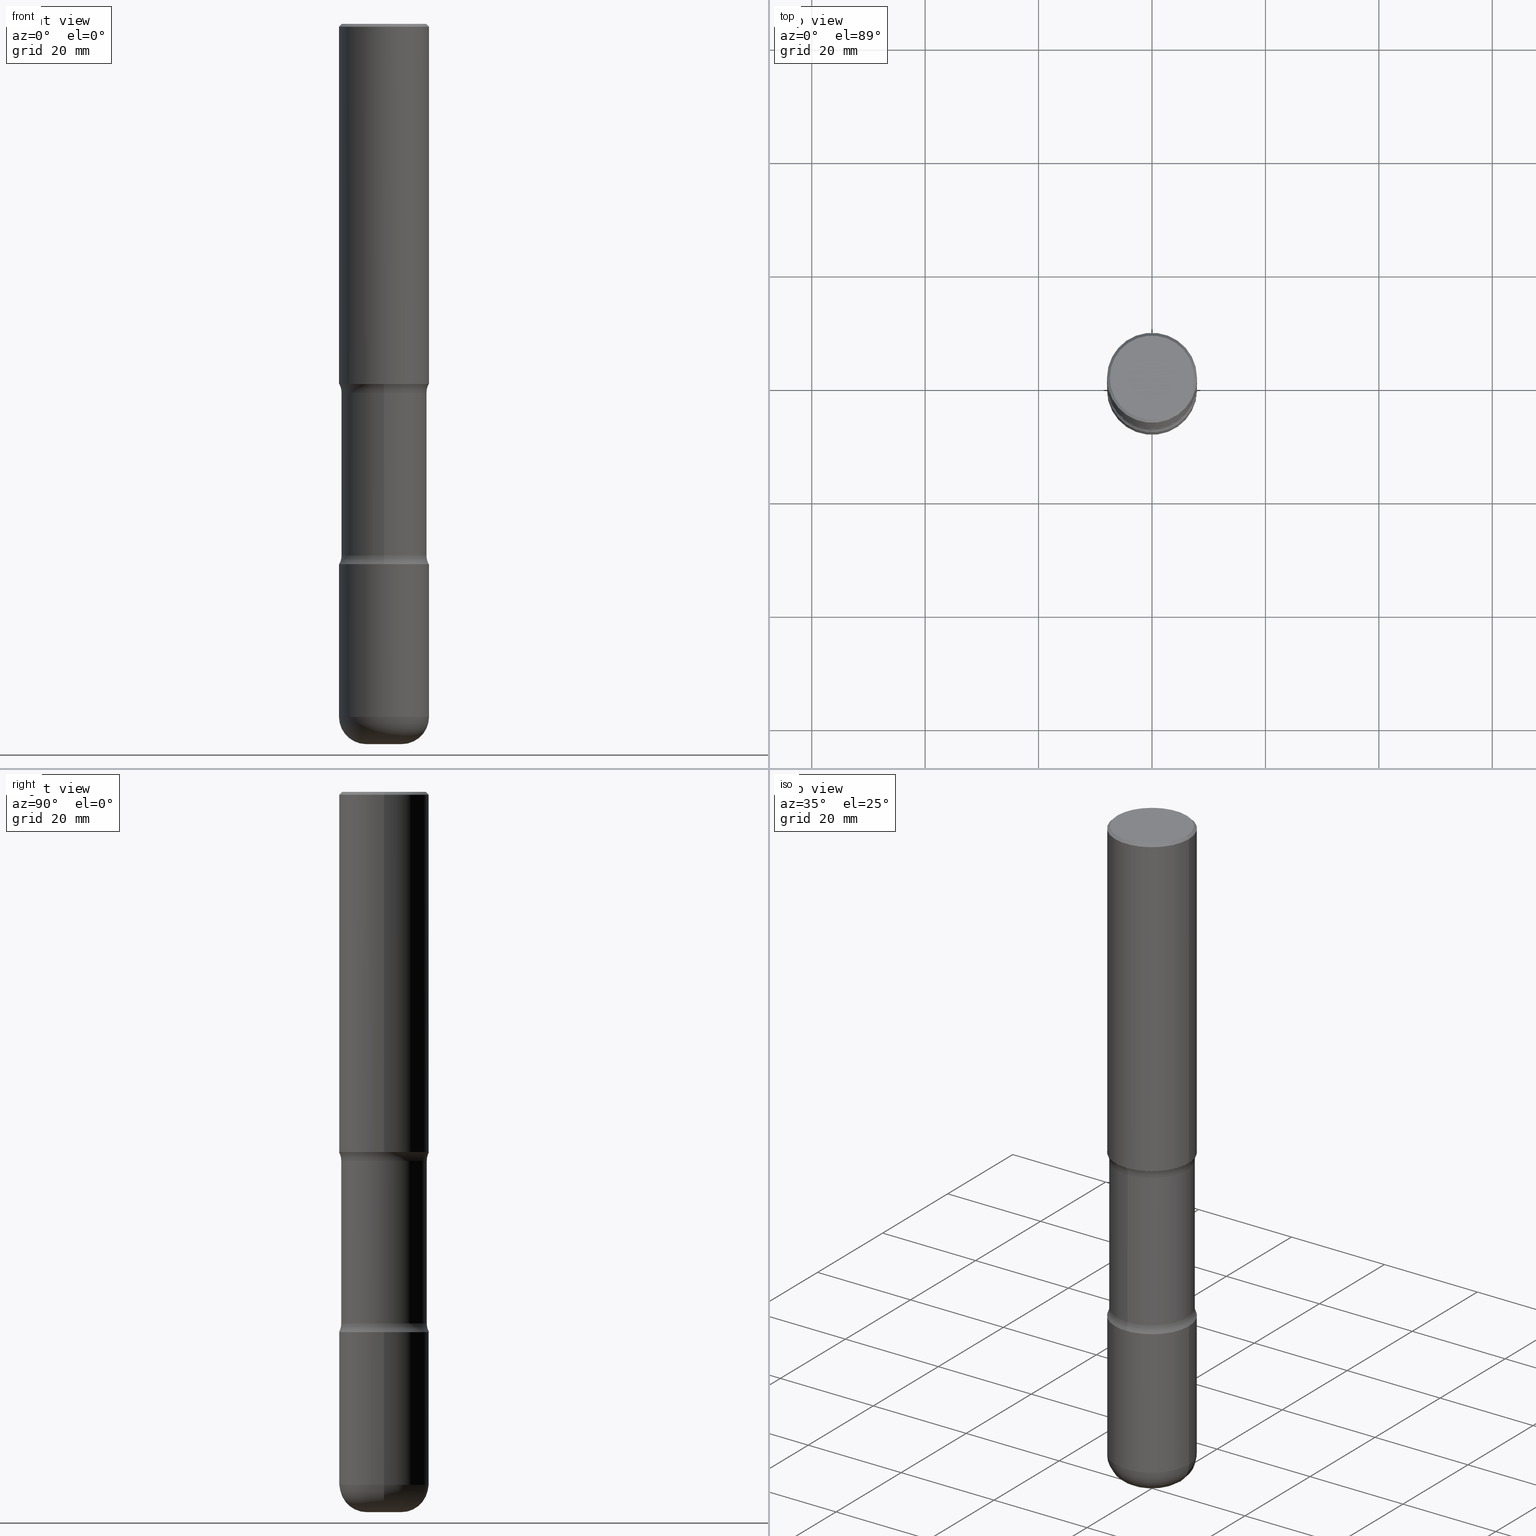
[diagram: canonical four-view strip — front | top / right | iso, engineering-drawing reading convention]
A machine part, canonical four-view strip (front | top / right | iso — engineering-drawing reading convention). The complete STEP part file that produces these views, byte-faithful:
ISO-10303-21;
HEADER;
FILE_DESCRIPTION (( 'STEP AP203' ),
    '1' );
FILE_NAME ('37918.STEP',
    '2024-03-02T01:24:31',
    ( '' ),
    ( '' ),
    'SwSTEP 2.0',
    'SolidWorks 2023',
    '' );
FILE_SCHEMA (( 'CONFIG_CONTROL_DESIGN' ));
ENDSEC;

DATA;
#1 = CLOSED_SHELL ( 'NONE', ( #56, #107, #480, #390, #368, #165, #510, #250 ) ) ;
#2 = APPROVAL_PERSON_ORGANIZATION ( #365, #194, #538 ) ;
#3 = EDGE_CURVE ( 'NONE', #168, #121, #138, .T. ) ;
#4 = ORIENTED_EDGE ( 'NONE', *, *, #113, .T. ) ;
#5 = FACE_OUTER_BOUND ( 'NONE', #467, .T. ) ;
#6 = CARTESIAN_POINT ( 'NONE',  ( 1.232232987248685960E-28, -1.732138156284176685E-14, -5.000000000000000000 ) ) ;
#7 = VERTEX_POINT ( 'NONE', #273 ) ;
#8 = DIRECTION ( 'NONE',  ( 6.982962677686265922E-15, 1.000000000000000000, -3.496765431890253764E-15 ) ) ;
#9 = DIRECTION ( 'NONE',  ( 2.521457479434076939E-29, -3.382661233743975076E-15, -1.000000000000000000 ) ) ;
#10 = DIRECTION ( 'NONE',  ( 6.982962677686266711E-15, 1.000000000000000000, -3.680805717779217644E-15 ) ) ;
#11 = EDGE_CURVE ( 'NONE', #264, #134, #153, .T. ) ;
#12 = CARTESIAN_POINT ( 'NONE',  ( 0.000000000000000000, 0.000000000000000000, 0.000000000000000000 ) ) ;
#13 = DIRECTION ( 'NONE',  ( -2.445468806185136597E-29, 3.491481338843145583E-15, 1.000000000000000000 ) ) ;
#14 = PERSON_AND_ORGANIZATION ( #469, #465 ) ;
#15 = CARTESIAN_POINT ( 'NONE',  ( 1.176270495775050811E-28, -1.679402523983553013E-14, -4.810000000000000497 ) ) ;
#16 = DIRECTION ( 'NONE',  ( -6.982962677686266711E-15, -1.000000000000000000, 0.000000000000000000 ) ) ;
#17 = CARTESIAN_POINT ( 'NONE',  ( -2.894272592809803347E-15, -0.4218750000000091593, -2.560515364784489378 ) ) ;
#18 = PERSON_AND_ORGANIZATION_ROLE ( 'design_owner' ) ;
#19 = UNCERTAINTY_MEASURE_WITH_UNIT (LENGTH_MEASURE( 1.000000000000000082E-05 ), #22, 'distance_accuracy_value', 'NONE');
#20 = DIRECTION ( 'NONE',  ( 1.000000000000000000, -6.982962677686265922E-15, 4.876176775795935793E-29 ) ) ;
#21 = CARTESIAN_POINT ( 'NONE',  ( 9.170508023194261117E-29, -1.309305502066179584E-14, -3.749999999999999556 ) ) ;
#22 =( CONVERSION_BASED_UNIT ( 'INCH', #284 ) LENGTH_UNIT ( ) NAMED_UNIT ( #342 ) );
#23 = DIRECTION ( 'NONE',  ( 2.438088387897960049E-29, -3.491481338843145188E-15, -1.000000000000000000 ) ) ;
#24 = AXIS2_PLACEMENT_3D ( 'NONE', #17, #322, #530 ) ;
#25 = ADVANCED_FACE ( 'NONE', ( #50 ), #442, .T. ) ;
#26 = AXIS2_PLACEMENT_3D ( 'NONE', #432, #180, #485 ) ;
#27 = DIRECTION ( 'NONE',  ( 0.000000000000000000, 0.000000000000000000, 1.000000000000000000 ) ) ;
#28 = CARTESIAN_POINT ( 'NONE',  ( -0.3124999999999998890, 2.112346210000094260E-15, -0.02000000000000006981 ) ) ;
#29 = CARTESIAN_POINT ( 'NONE',  ( -0.3125000000000002220, -2.178820437692046306E-15, -2.499999999999999556 ) ) ;
#30 = CARTESIAN_POINT ( 'NONE',  ( 2.073067044938200360E-15, 0.2968749999999871214, -3.689484635215509289 ) ) ;
#31 = AXIS2_PLACEMENT_3D ( 'NONE', #285, #317, #357 ) ;
#32 = ORIENTED_EDGE ( 'NONE', *, *, #295, .T. ) ;
#33 = LOCAL_TIME ( 20, 24, 31.00000000000000000, #151 ) ;
#34 = APPROVAL_DATE_TIME ( #36, #503 ) ;
#35 = DIRECTION ( 'NONE',  ( 6.982962677686265922E-15, 1.000000000000000000, -3.496765431890253764E-15 ) ) ;
#36 = DATE_AND_TIME ( #419, #394 ) ;
#37 = EDGE_CURVE ( 'NONE', #314, #209, #161, .T. ) ;
#38 = EDGE_LOOP ( 'NONE', ( #32, #350, #164, #289 ) ) ;
#39 = CIRCLE ( 'NONE', #103, 0.2924999999999998157 ) ;
#40 = LOCAL_TIME ( 20, 24, 31.00000000000000000, #451 ) ;
#41 = ORIENTED_EDGE ( 'NONE', *, *, #37, .T. ) ;
#42 = VERTEX_POINT ( 'NONE', #484 ) ;
#43 = ORIENTED_EDGE ( 'NONE', *, *, #427, .T. ) ;
#44 = AXIS2_PLACEMENT_3D ( 'NONE', #69, #288, #248 ) ;
#45 = CARTESIAN_POINT ( 'NONE',  ( 2.042516583223231356E-15, 0.2924999999999998157, -1.019124035366569212E-15 ) ) ;
#46 = CIRCLE ( 'NONE', #216, 0.3125000000000002776 ) ;
#47 = DIRECTION ( 'NONE',  ( 6.982962677686266711E-15, 1.000000000000000000, -3.680805717779217644E-15 ) ) ;
#48 = ORIENTED_EDGE ( 'NONE', *, *, #531, .T. ) ;
#49 = FACE_OUTER_BOUND ( 'NONE', #392, .T. ) ;
#50 = FACE_OUTER_BOUND ( 'NONE', #511, .T. ) ;
#51 = DATE_TIME_ROLE ( 'creation_date' ) ;
#52 = CARTESIAN_POINT ( 'NONE',  ( 1.222734403092568523E-28, -1.745740669421572989E-14, -5.000000000000000000 ) ) ;
#53 = APPLICATION_CONTEXT ( 'configuration controlled 3d designs of mechanical parts and assemblies' ) ;
#54 = DIRECTION ( 'NONE',  ( 1.000000000000000000, -6.982962677686265133E-15, 0.000000000000000000 ) ) ;
#55 = CARTESIAN_POINT ( 'NONE',  ( 0.000000000000000000, 0.000000000000000000, 0.000000000000000000 ) ) ;
#56 = ADVANCED_FACE ( 'NONE', ( #450 ), #283, .T. ) ;
#57 = FACE_OUTER_BOUND ( 'NONE', #302, .T. ) ;
#58 = AXIS2_PLACEMENT_3D ( 'NONE', #160, #336, #117 ) ;
#59 = CARTESIAN_POINT ( 'NONE',  ( -2.090307983695953569E-15, -0.2968750000000091038, -2.560515364784489822 ) ) ;
#60 = DIRECTION ( 'NONE',  ( 1.000000000000000000, -6.982962677686266711E-15, 4.876067333457692840E-29 ) ) ;
#61 = DIRECTION ( 'NONE',  ( -1.000000000000000000, 6.982962677686265922E-15, -4.876176775795935793E-29 ) ) ;
#62 = EDGE_CURVE ( 'NONE', #42, #259, #404, .T. ) ;
#63 = EDGE_CURVE ( 'NONE', #168, #520, #512, .T. ) ;
#64 = APPLICATION_PROTOCOL_DEFINITION ( 'international standard', 'config_control_design', 1994, #53 ) ;
#65 = CARTESIAN_POINT ( 'NONE',  ( 9.017921104037724021E-29, -1.288835204215942242E-14, -3.689484635215508401 ) ) ;
#66 = AXIS2_PLACEMENT_3D ( 'NONE', #55, #452, #242 ) ;
#67 = CIRCLE ( 'NONE', #513, 0.3125000000000002220 ) ;
#68 = VERTEX_POINT ( 'NONE', #400 ) ;
#69 = CARTESIAN_POINT ( 'NONE',  ( 0.000000000000000000, 0.000000000000000000, 0.000000000000000000 ) ) ;
#70 = EDGE_CURVE ( 'NONE', #7, #344, #39, .T. ) ;
#71 = DIRECTION ( 'NONE',  ( 1.000000000000000000, 0.000000000000000000, 0.000000000000000000 ) ) ;
#72 = DIRECTION ( 'NONE',  ( 1.000000000000000000, -6.982962677686266711E-15, 0.000000000000000000 ) ) ;
#73 = CARTESIAN_POINT ( 'NONE',  ( 1.222734403092568523E-28, -1.745740669421572989E-14, -5.000000000000000000 ) ) ;
#74 = EDGE_CURVE ( 'NONE', #134, #264, #553, .T. ) ;
#75 =( NAMED_UNIT ( * ) SI_UNIT ( $, .STERADIAN. ) SOLID_ANGLE_UNIT ( ) );
#76 = AXIS2_PLACEMENT_3D ( 'NONE', #434, #9, #47 ) ;
#77 = APPROVAL_PERSON_ORGANIZATION ( #101, #503, #446 ) ;
#78 = ORIENTED_EDGE ( 'NONE', *, *, #330, .T. ) ;
#79 = DESIGN_CONTEXT ( 'detailed design', #144, 'design' ) ;
#80 = EDGE_CURVE ( 'NONE', #344, #7, #324, .T. ) ;
#81 = CARTESIAN_POINT ( 'NONE',  ( 0.3125000000000001665, -2.182175836776959530E-15, 1.523805242436230636E-29 ) ) ;
#82 = EDGE_CURVE ( 'NONE', #367, #525, #527, .T. ) ;
#83 = ORIENTED_EDGE ( 'NONE', *, *, #166, .T. ) ;
#84 = VERTEX_POINT ( 'NONE', #537 ) ;
#85 = AXIS2_PLACEMENT_3D ( 'NONE', #170, #343, #16 ) ;
#86 = AXIS2_PLACEMENT_3D ( 'NONE', #337, #298, #123 ) ;
#87 = AXIS2_PLACEMENT_3D ( 'NONE', #183, #355, #526 ) ;
#88 = ORIENTED_EDGE ( 'NONE', *, *, #62, .F. ) ;
#89 = CC_DESIGN_DATE_AND_TIME_ASSIGNMENT ( #192, #318, ( #426 ) ) ;
#90 = EDGE_LOOP ( 'NONE', ( #476, #83, #381, #478 ) ) ;
#91 = DIRECTION ( 'NONE',  ( 2.438088387897960049E-29, -3.491481338843145188E-15, -1.000000000000000000 ) ) ;
#92 = ORIENTED_EDGE ( 'NONE', *, *, #260, .F. ) ;
#93 = VECTOR ( 'NONE', #489, 39.37007874015748143 ) ;
#94 = CARTESIAN_POINT ( 'NONE',  ( -2.090307983695922804E-15, -0.2968750000000128786, -3.689484635215507069 ) ) ;
#95 = AXIS2_PLACEMENT_3D ( 'NONE', #12, #488, #351 ) ;
#96 = DIRECTION ( 'NONE',  ( -2.445468806185136597E-29, 3.491481338843145583E-15, 1.000000000000000000 ) ) ;
#97 = CARTESIAN_POINT ( 'NONE',  ( 0.1225000000000003031, -1.764943816785210001E-14, -4.810000000000000497 ) ) ;
#98 = ORIENTED_EDGE ( 'NONE', *, *, #82, .T. ) ;
#99 = CARTESIAN_POINT ( 'NONE',  ( 4.890937612370289799E-31, -6.982962677686315028E-17, -0.02000000000000006981 ) ) ;
#100 = CARTESIAN_POINT ( 'NONE',  ( -1.043851414335219820E-46, 1.490343170380447200E-32, 4.268512490100411279E-18 ) ) ;
#101 = PERSON_AND_ORGANIZATION ( #469, #465 ) ;
#102 = DIRECTION ( 'NONE',  ( 1.000000000000000000, -6.982962677686264344E-15, 0.000000000000000000 ) ) ;
#103 = AXIS2_PLACEMENT_3D ( 'NONE', #142, #405, #191 ) ;
#104 = VECTOR ( 'NONE', #262, 39.37007874015748143 ) ;
#105 = DIRECTION ( 'NONE',  ( -1.000000000000000000, 6.982962677686265922E-15, -4.876176775795935793E-29 ) ) ;
#106 = ORIENTED_EDGE ( 'NONE', *, *, #421, .T. ) ;
#107 = ADVANCED_FACE ( 'NONE', ( #374 ), #471, .F. ) ;
#108 = FACE_OUTER_BOUND ( 'NONE', #470, .T. ) ;
#109 = DIRECTION ( 'NONE',  ( 1.000000000000000000, -6.982962677686266711E-15, 0.000000000000000000 ) ) ;
#110 = APPROVAL_ROLE ( '' ) ;
#111 = PERSON_AND_ORGANIZATION ( #469, #465 ) ;
#112 = ORIENTED_EDGE ( 'NONE', *, *, #531, .F. ) ;
#113 = EDGE_CURVE ( 'NONE', #121, #502, #455, .T. ) ;
#114 = DIRECTION ( 'NONE',  ( 2.521457479434076939E-29, -3.382661233743975076E-15, -1.000000000000000000 ) ) ;
#115 = CIRCLE ( 'NONE', #85, 0.1250000000000001388 ) ;
#116 = CC_DESIGN_APPROVAL ( #194, ( #377 ) ) ;
#117 = DIRECTION ( 'NONE',  ( 6.982962677686265922E-15, 1.000000000000000000, -3.382661233743974681E-15 ) ) ;
#118 = CARTESIAN_POINT ( 'NONE',  ( 2.945937379648955300E-15, 0.4218749999999909517, -2.560515364784492487 ) ) ;
#119 = EDGE_LOOP ( 'NONE', ( #137, #249 ) ) ;
#120 = FACE_OUTER_BOUND ( 'NONE', #38, .T. ) ;
#121 = VERTEX_POINT ( 'NONE', #206 ) ;
#122 = DIRECTION ( 'NONE',  ( 2.521457479434076939E-29, -3.382661233743975076E-15, -1.000000000000000000 ) ) ;
#123 = DIRECTION ( 'NONE',  ( 6.982962677686265922E-15, 1.000000000000000000, -3.382661233743975076E-15 ) ) ;
#124 = AXIS2_PLACEMENT_3D ( 'NONE', #453, #461, #251 ) ;
#125 = EDGE_CURVE ( 'NONE', #132, #314, #444, .T. ) ;
#126 = EDGE_CURVE ( 'NONE', #264, #277, #115, .T. ) ;
#127 = ORIENTED_EDGE ( 'NONE', *, *, #63, .F. ) ;
#128 = ORIENTED_EDGE ( 'NONE', *, *, #557, .T. ) ;
#129 = ORIENTED_EDGE ( 'NONE', *, *, #384, .F. ) ;
#130 = AXIS2_PLACEMENT_3D ( 'NONE', #97, #412, #109 ) ;
#131 = VECTOR ( 'NONE', #558, 39.37007874015748143 ) ;
#132 = VERTEX_POINT ( 'NONE', #524 ) ;
#133 = CARTESIAN_POINT ( 'NONE',  ( 9.022519586318873617E-29, -1.288176675380345821E-14, -3.689484635215508401 ) ) ;
#134 = VERTEX_POINT ( 'NONE', #483 ) ;
#135 = DIRECTION ( 'NONE',  ( 6.982962677686265922E-15, 1.000000000000000000, -3.382661233743975076E-15 ) ) ;
#136 = CARTESIAN_POINT ( 'NONE',  ( 4.890937612370289799E-31, -6.982962677686315028E-17, -0.02000000000000006981 ) ) ;
#137 = ORIENTED_EDGE ( 'NONE', *, *, #544, .F. ) ;
#138 = CIRCLE ( 'NONE', #386, 0.2968750000000000000 ) ;
#139 = DIRECTION ( 'NONE',  ( -1.000000000000000000, 6.982962677686266711E-15, 0.000000000000000000 ) ) ;
#140 = AXIS2_PLACEMENT_3D ( 'NONE', #320, #359, #267 ) ;
#141 = FACE_OUTER_BOUND ( 'NONE', #551, .T. ) ;
#142 = CARTESIAN_POINT ( 'NONE',  ( -1.043851414335219820E-46, 1.490343170380447200E-32, 4.268512490100411279E-18 ) ) ;
#143 = PERSON_AND_ORGANIZATION_ROLE ( 'classification_officer' ) ;
#144 = APPLICATION_CONTEXT ( 'configuration controlled 3d designs of mechanical parts and assemblies' ) ;
#145 = CARTESIAN_POINT ( 'NONE',  ( 2.182175836777019878E-15, 0.3124999999999913958, -2.500000000000000444 ) ) ;
#146 = DIRECTION ( 'NONE',  ( 2.521457479434076939E-29, -3.382661233743975076E-15, -1.000000000000000000 ) ) ;
#147 = CARTESIAN_POINT ( 'NONE',  ( -0.3124999999999998890, 2.112346210000094260E-15, -0.02000000000000006981 ) ) ;
#148 = EDGE_CURVE ( 'NONE', #7, #68, #356, .T. ) ;
#149 = DIRECTION ( 'NONE',  ( -6.982962677686265922E-15, -1.000000000000000000, 3.382661233743974681E-15 ) ) ;
#150 = EDGE_LOOP ( 'NONE', ( #254, #182 ) ) ;
#151 = COORDINATED_UNIVERSAL_TIME_OFFSET ( 5, 0, .BEHIND. ) ;
#152 = ADVANCED_FACE ( 'NONE', ( #190 ), #360, .F. ) ;
#153 = CIRCLE ( 'NONE', #200, 0.3125000000000001665 ) ;
#154 = VECTOR ( 'NONE', #270, 39.37007874015748143 ) ;
#155 = DIRECTION ( 'NONE',  ( -2.521457479434076939E-29, 3.382661233743974681E-15, 1.000000000000000000 ) ) ;
#156 = ORIENTED_EDGE ( 'NONE', *, *, #271, .T. ) ;
#157 = DIRECTION ( 'NONE',  ( -2.445468806185136597E-29, 3.491481338843145583E-15, 1.000000000000000000 ) ) ;
#158 = DIRECTION ( 'NONE',  ( 1.000000000000000000, -6.982962677686265922E-15, 4.883557194083112340E-29 ) ) ;
#159 = DIRECTION ( 'NONE',  ( -2.445468806185136597E-29, 3.491481338843145583E-15, 1.000000000000000000 ) ) ;
#160 = CARTESIAN_POINT ( 'NONE',  ( 6.113672015462840371E-29, -8.728703347107863365E-15, -2.499999999999999556 ) ) ;
#161 = CIRCLE ( 'NONE', #130, 0.1899999999999998634 ) ;
#162 = CIRCLE ( 'NONE', #414, 0.3125000000000002776 ) ;
#163 = AXIS2_PLACEMENT_3D ( 'NONE', #45, #91, #61 ) ;
#164 = ORIENTED_EDGE ( 'NONE', *, *, #557, .F. ) ;
#165 = ADVANCED_FACE ( 'NONE', ( #282 ), #366, .F. ) ;
#166 = EDGE_CURVE ( 'NONE', #168, #435, #184, .T. ) ;
#167 = VECTOR ( 'NONE', #507, 39.37007874015748143 ) ;
#168 = VERTEX_POINT ( 'NONE', #59 ) ;
#169 = AXIS2_PLACEMENT_3D ( 'NONE', #99, #235, #139 ) ;
#170 = CARTESIAN_POINT ( 'NONE',  ( 2.945937379648984488E-15, 0.4218749999999872324, -3.689484635215510178 ) ) ;
#171 = ORIENTED_EDGE ( 'NONE', *, *, #70, .F. ) ;
#172 = ADVANCED_FACE ( 'NONE', ( #321 ), #493, .T. ) ;
#173 = FACE_OUTER_BOUND ( 'NONE', #217, .T. ) ;
#174 = ORIENTED_EDGE ( 'NONE', *, *, #536, .T. ) ;
#175 = ADVANCED_FACE ( 'NONE', ( #449 ), #334, .T. ) ;
#176 = ORIENTED_EDGE ( 'NONE', *, *, #11, .T. ) ;
#177 = CLOSED_SHELL ( 'NONE', ( #313, #175, #463, #422, #152, #438 ) ) ;
#178 =( GEOMETRIC_REPRESENTATION_CONTEXT ( 3 ) GLOBAL_UNCERTAINTY_ASSIGNED_CONTEXT ( ( #19 ) ) GLOBAL_UNIT_ASSIGNED_CONTEXT ( ( #22, #199, #75 ) ) REPRESENTATION_CONTEXT ( 'NONE', 'WORKASPACE' ) );
#179 = EDGE_LOOP ( 'NONE', ( #176, #375 ) ) ;
#180 = DIRECTION ( 'NONE',  ( 1.000000000000000000, -6.860497997771530774E-15, 4.842131541558068249E-29 ) ) ;
#181 = DIRECTION ( 'NONE',  ( 2.521457479434076939E-29, -3.382661233743975076E-15, -1.000000000000000000 ) ) ;
#182 = ORIENTED_EDGE ( 'NONE', *, *, #125, .F. ) ;
#183 = CARTESIAN_POINT ( 'NONE',  ( 4.890937612370289799E-31, -6.982962677686315028E-17, -0.02000000000000006981 ) ) ;
#184 = LINE ( 'NONE', #276, #505 ) ;
#185 = DIRECTION ( 'NONE',  ( 6.982962677686265133E-15, 1.000000000000000000, -3.496765431890254947E-15 ) ) ;
#186 = SECURITY_CLASSIFICATION_LEVEL ( 'unclassified' ) ;
#187 = AXIS2_PLACEMENT_3D ( 'NONE', #539, #155, #149 ) ;
#188 = DIRECTION ( 'NONE',  ( -2.445468806185136597E-29, 3.491481338843145583E-15, 1.000000000000000000 ) ) ;
#189 = CC_DESIGN_APPROVAL ( #341, ( #207 ) ) ;
#190 = FACE_OUTER_BOUND ( 'NONE', #431, .T. ) ;
#191 = DIRECTION ( 'NONE',  ( 1.000000000000000000, -6.982962677686266711E-15, 4.876067333457692840E-29 ) ) ;
#192 = DATE_AND_TIME ( #274, #325 ) ;
#193 = LINE ( 'NONE', #408, #529 ) ;
#194 = APPROVAL ( #491, 'UNSPECIFIED' ) ;
#195 = DIRECTION ( 'NONE',  ( -2.445468806185136597E-29, 3.491481338843145583E-15, 1.000000000000000000 ) ) ;
#196 = APPLICATION_PROTOCOL_DEFINITION ( 'international standard', 'config_control_design', 1994, #144 ) ;
#197 = ORIENTED_EDGE ( 'NONE', *, *, #80, .T. ) ;
#198 = APPROVAL_STATUS ( 'not_yet_approved' ) ;
#199 =( NAMED_UNIT ( * ) PLANE_ANGLE_UNIT ( ) SI_UNIT ( $, .RADIAN. ) );
#200 = AXIS2_PLACEMENT_3D ( 'NONE', #21, #310, #185 ) ;
#201 = LOCAL_TIME ( 20, 24, 31.00000000000000000, #362 ) ;
#202 = DIRECTION ( 'NONE',  ( 2.521457479434076939E-29, -3.382661233743975076E-15, -1.000000000000000000 ) ) ;
#203 = PERSON_AND_ORGANIZATION ( #469, #465 ) ;
#204 = MECHANICAL_CONTEXT ( 'NONE', #53, 'mechanical' ) ;
#205 = DIRECTION ( 'NONE',  ( -2.445468806185136597E-29, 3.491481338843145583E-15, 1.000000000000000000 ) ) ;
#206 = CARTESIAN_POINT ( 'NONE',  ( 2.073067044938171961E-15, 0.2968749999999909517, -2.560515364784492043 ) ) ;
#207 = PRODUCT_DEFINITION ( 'UNKNOWN', '', #377, #79 ) ;
#208 = CARTESIAN_POINT ( 'NONE',  ( 6.113672015462840371E-29, -8.728703347107863365E-15, -2.499999999999999556 ) ) ;
#209 = VERTEX_POINT ( 'NONE', #528 ) ;
#210 = AXIS2_PLACEMENT_3D ( 'NONE', #411, #535, #239 ) ;
#211 = ORIENTED_EDGE ( 'NONE', *, *, #306, .F. ) ;
#212 = PRODUCT_RELATED_PRODUCT_CATEGORY ( 'detail', '', ( #556 ) ) ;
#213 = SHAPE_DEFINITION_REPRESENTATION ( #349, #319 ) ;
#214 = CIRCLE ( 'NONE', #233, 0.3124999999999998890 ) ;
#215 = ORIENTED_EDGE ( 'NONE', *, *, #330, .F. ) ;
#216 = AXIS2_PLACEMENT_3D ( 'NONE', #523, #309, #8 ) ;
#217 = EDGE_LOOP ( 'NONE', ( #127, #517, #4, #439 ) ) ;
#218 = ORIENTED_EDGE ( 'NONE', *, *, #479, .F. ) ;
#219 = ORIENTED_EDGE ( 'NONE', *, *, #415, .T. ) ;
#220 = CIRCLE ( 'NONE', #369, 0.2968750000000000000 ) ;
#221 = CC_DESIGN_SECURITY_CLASSIFICATION ( #426, ( #377 ) ) ;
#222 = DIRECTION ( 'NONE',  ( 6.982962677686265922E-15, 1.000000000000000000, -3.382661233743975076E-15 ) ) ;
#223 = EDGE_CURVE ( 'NONE', #121, #168, #540, .T. ) ;
#224 = CYLINDRICAL_SURFACE ( 'NONE', #464, 0.2968750000000000000 ) ;
#225 = ORIENTED_EDGE ( 'NONE', *, *, #253, .T. ) ;
#226 = CARTESIAN_POINT ( 'NONE',  ( 0.3125000000000002220, -1.091087918388482329E-14, -2.499999999999999556 ) ) ;
#227 = DIRECTION ( 'NONE',  ( 1.000000000000000000, -6.982962677686264344E-15, 0.000000000000000000 ) ) ;
#228 = DIRECTION ( 'NONE',  ( 1.000000000000000000, -6.982962677686265133E-15, 0.000000000000000000 ) ) ;
#229 = CARTESIAN_POINT ( 'NONE',  ( 6.166278489433880529E-29, -9.076584013649411488E-15, -2.560515364784490711 ) ) ;
#230 = CARTESIAN_POINT ( 'NONE',  ( 1.222734403092568523E-28, -1.745740669421572989E-14, -5.000000000000000000 ) ) ;
#231 = CARTESIAN_POINT ( 'NONE',  ( 9.170508023194261117E-29, -1.309305502066179584E-14, -3.749999999999999556 ) ) ;
#232 = APPROVAL_DATE_TIME ( #286, #194 ) ;
#233 = AXIS2_PLACEMENT_3D ( 'NONE', #441, #157, #72 ) ;
#234 = TOROIDAL_SURFACE ( 'NONE', #456, 0.4218750000000001110, 0.1250000000000001388 ) ;
#235 = DIRECTION ( 'NONE',  ( 2.445468806185136597E-29, -3.491481338843145583E-15, -1.000000000000000000 ) ) ;
#236 = MANIFOLD_SOLID_BREP ( 'Body-Move/Copy2[4]', #1 ) ;
#237 = CARTESIAN_POINT ( 'NONE',  ( 6.113672015462840371E-29, -8.728703347107863365E-15, -2.499999999999999556 ) ) ;
#238 = CC_DESIGN_DATE_AND_TIME_ASSIGNMENT ( #332, #51, ( #207 ) ) ;
#239 = DIRECTION ( 'NONE',  ( 1.000000000000000000, -6.982962677686266711E-15, 4.876176775795935232E-29 ) ) ;
#240 = MANIFOLD_SOLID_BREP ( 'Body-Move/Copy2[1]', #346 ) ;
#241 = CARTESIAN_POINT ( 'NONE',  ( 0.3124999999999998890, -2.213735251080466123E-15, -0.02000000000000006981 ) ) ;
#242 = DIRECTION ( 'NONE',  ( 1.000000000000000000, -6.982962677686266711E-15, 4.876176775795935232E-29 ) ) ;
#243 = CALENDAR_DATE ( 2024, 1, 3 ) ;
#244 =( LENGTH_UNIT ( ) NAMED_UNIT ( * ) SI_UNIT ( $, .METRE. ) );
#245 = AXIS2_PLACEMENT_3D ( 'NONE', #247, #205, #158 ) ;
#246 = AXIS2_PLACEMENT_3D ( 'NONE', #293, #27, #71 ) ;
#247 = CARTESIAN_POINT ( 'NONE',  ( 1.176270495775050811E-28, -1.679402523983553013E-14, -4.810000000000000497 ) ) ;
#248 = DIRECTION ( 'NONE',  ( 1.000000000000000000, -6.982962677686266711E-15, 4.876176775795936353E-29 ) ) ;
#249 = ORIENTED_EDGE ( 'NONE', *, *, #378, .F. ) ;
#250 = ADVANCED_FACE ( 'NONE', ( #141 ), #224, .T. ) ;
#251 = DIRECTION ( 'NONE',  ( 1.000000000000000000, -6.982962677686265922E-15, 4.883557194083112340E-29 ) ) ;
#252 = AXIS2_PLACEMENT_3D ( 'NONE', #230, #409, #105 ) ;
#253 = EDGE_CURVE ( 'NONE', #259, #42, #280, .T. ) ;
#254 = ORIENTED_EDGE ( 'NONE', *, *, #421, .F. ) ;
#255 = CIRCLE ( 'NONE', #407, 0.3125000000000002220 ) ;
#256 = ORIENTED_EDGE ( 'NONE', *, *, #271, .F. ) ;
#257 = TOROIDAL_SURFACE ( 'NONE', #358, 0.4218750000000000555, 0.1250000000000000000 ) ;
#258 = ORIENTED_EDGE ( 'NONE', *, *, #295, .F. ) ;
#259 = VERTEX_POINT ( 'NONE', #268 ) ;
#260 = EDGE_CURVE ( 'NONE', #84, #209, #255, .T. ) ;
#261 = CC_DESIGN_PERSON_AND_ORGANIZATION_ASSIGNMENT ( #401, #323, ( #377 ) ) ;
#262 = DIRECTION ( 'NONE',  ( -2.445468806185136877E-29, 3.491481338843145188E-15, 1.000000000000000000 ) ) ;
#263 = DIRECTION ( 'NONE',  ( 2.521457479434076939E-29, -3.382661233743974681E-15, -1.000000000000000000 ) ) ;
#264 = VERTEX_POINT ( 'NONE', #403 ) ;
#265 = AXIS2_PLACEMENT_3D ( 'NONE', #100, #445, #60 ) ;
#266 = AXIS2_PLACEMENT_3D ( 'NONE', #229, #440, #222 ) ;
#267 = DIRECTION ( 'NONE',  ( -1.000000000000000000, 7.105427357601003436E-15, 0.000000000000000000 ) ) ;
#268 = CARTESIAN_POINT ( 'NONE',  ( -0.3125000000000001665, -1.272309408099834754E-14, -3.749999999999999556 ) ) ;
#269 = DIRECTION ( 'NONE',  ( 2.521457479434076939E-29, -3.382661233743975076E-15, -1.000000000000000000 ) ) ;
#270 = DIRECTION ( 'NONE',  ( -2.445468806185136877E-29, 3.491481338843145188E-15, 1.000000000000000000 ) ) ;
#271 = EDGE_CURVE ( 'NONE', #475, #68, #214, .T. ) ;
#272 = CARTESIAN_POINT ( 'NONE',  ( 1.176270495775050811E-28, -1.679402523983553013E-14, -4.810000000000000497 ) ) ;
#273 = CARTESIAN_POINT ( 'NONE',  ( 0.2924999999999998157, -2.110215457714318748E-15, 4.268512490114932791E-18 ) ) ;
#274 = CALENDAR_DATE ( 2024, 1, 3 ) ;
#275 = FACE_OUTER_BOUND ( 'NONE', #345, .T. ) ;
#276 = CARTESIAN_POINT ( 'NONE',  ( -2.036710343088299976E-15, -0.2968750000000173195, -4.999999999999999112 ) ) ;
#277 = VERTEX_POINT ( 'NONE', #30 ) ;
#278 = APPROVAL_STATUS ( 'not_yet_approved' ) ;
#279 = ADVANCED_FACE ( 'NONE', ( #379 ), #548, .F. ) ;
#280 = CIRCLE ( 'NONE', #494, 0.3125000000000001665 ) ;
#281 = CYLINDRICAL_SURFACE ( 'NONE', #210, 0.3125000000000001665 ) ;
#282 = FACE_OUTER_BOUND ( 'NONE', #179, .T. ) ;
#283 = CYLINDRICAL_SURFACE ( 'NONE', #31, 0.2968750000000000000 ) ;
#284 = LENGTH_MEASURE_WITH_UNIT ( LENGTH_MEASURE( 0.02539999999999999897 ), #244 );
#285 = CARTESIAN_POINT ( 'NONE',  ( 1.232232987248685960E-28, -1.732138156284176685E-14, -5.000000000000000000 ) ) ;
#286 = DATE_AND_TIME ( #501, #33 ) ;
#287 = CC_DESIGN_PERSON_AND_ORGANIZATION_ASSIGNMENT ( #499, #543, ( #207 ) ) ;
#288 = DIRECTION ( 'NONE',  ( -2.445468806185136597E-29, 3.491481338843145583E-15, 1.000000000000000000 ) ) ;
#289 = ORIENTED_EDGE ( 'NONE', *, *, #415, .F. ) ;
#290 = AXIS2_PLACEMENT_3D ( 'NONE', #399, #316, #20 ) ;
#291 = VECTOR ( 'NONE', #423, 39.37007874015748143 ) ;
#292 = DIRECTION ( 'NONE',  ( 6.982962677686265133E-15, 1.000000000000000000, -3.680805717779217644E-15 ) ) ;
#293 = CARTESIAN_POINT ( 'NONE',  ( 0.000000000000000000, 0.000000000000000000, 0.000000000000000000 ) ) ;
#294 = COORDINATED_UNIVERSAL_TIME_OFFSET ( 5, 0, .BEHIND. ) ;
#295 = EDGE_CURVE ( 'NONE', #525, #367, #413, .T. ) ;
#296 = ORIENTED_EDGE ( 'NONE', *, *, #260, .T. ) ;
#297 = CYLINDRICAL_SURFACE ( 'NONE', #44, 0.3125000000000000000 ) ;
#298 = DIRECTION ( 'NONE',  ( 2.521457479434076939E-29, -3.382661233743975076E-15, -1.000000000000000000 ) ) ;
#299 = TOROIDAL_SURFACE ( 'NONE', #124, 0.1225000000000003031, 0.1899999999999998912 ) ;
#300 = LINE ( 'NONE', #81, #291 ) ;
#301 = ORIENTED_EDGE ( 'NONE', *, *, #3, .T. ) ;
#302 = EDGE_LOOP ( 'NONE', ( #487, #340, #78, #156 ) ) ;
#303 = CONICAL_SURFACE ( 'NONE', #169, 0.3124999999999998890, 0.7853981633974479459 ) ;
#304 = ORIENTED_EDGE ( 'NONE', *, *, #378, .T. ) ;
#305 = ORIENTED_EDGE ( 'NONE', *, *, #479, .T. ) ;
#306 = EDGE_CURVE ( 'NONE', #435, #277, #220, .T. ) ;
#307 = DIRECTION ( 'NONE',  ( 2.521457479434076939E-29, -3.382661233743975076E-15, -1.000000000000000000 ) ) ;
#308 = EDGE_LOOP ( 'NONE', ( #218, #428, #41, #92 ) ) ;
#309 = DIRECTION ( 'NONE',  ( 2.521457479434076939E-29, -3.382661233743975076E-15, -1.000000000000000000 ) ) ;
#310 = DIRECTION ( 'NONE',  ( 2.521457479434076939E-29, -3.382661233743975076E-15, -1.000000000000000000 ) ) ;
#311 = AXIS2_PLACEMENT_3D ( 'NONE', #118, #416, #371 ) ;
#312 = AXIS2_PLACEMENT_3D ( 'NONE', #52, #481, #492 ) ;
#313 = ADVANCED_FACE ( 'NONE', ( #120 ), #297, .T. ) ;
#314 = VERTEX_POINT ( 'NONE', #370 ) ;
#315 = FACE_OUTER_BOUND ( 'NONE', #353, .T. ) ;
#316 = DIRECTION ( 'NONE',  ( -2.438088387897960049E-29, 3.491481338843145188E-15, 1.000000000000000000 ) ) ;
#317 = DIRECTION ( 'NONE',  ( 2.521457479434076939E-29, -3.382661233743975076E-15, -1.000000000000000000 ) ) ;
#318 = DATE_TIME_ROLE ( 'classification_date' ) ;
#319 = ADVANCED_BREP_SHAPE_REPRESENTATION ( '37918', ( #240, #420, #236, #246 ), #178 ) ;
#320 = CARTESIAN_POINT ( 'NONE',  ( -0.1225000000000003031, -1.592361038852940387E-14, -4.810000000000000497 ) ) ;
#321 = FACE_OUTER_BOUND ( 'NONE', #150, .T. ) ;
#322 = DIRECTION ( 'NONE',  ( 1.000000000000000000, -6.860497997771530774E-15, 4.842131541558068249E-29 ) ) ;
#323 = PERSON_AND_ORGANIZATION_ROLE ( 'creator' ) ;
#324 = CIRCLE ( 'NONE', #265, 0.2924999999999998157 ) ;
#325 = LOCAL_TIME ( 20, 24, 31.00000000000000000, #495 ) ;
#326 = DIRECTION ( 'NONE',  ( 2.445468806185136597E-29, -3.491481338843145583E-15, -1.000000000000000000 ) ) ;
#327 = ORIENTED_EDGE ( 'NONE', *, *, #62, .T. ) ;
#328 = APPROVAL_DATE_TIME ( #542, #341 ) ;
#329 = ADVANCED_FACE ( 'NONE', ( #417 ), #299, .T. ) ;
#330 = EDGE_CURVE ( 'NONE', #344, #475, #550, .T. ) ;
#331 = DIRECTION ( 'NONE',  ( -2.445468806185136597E-29, 3.491481338843145583E-15, 1.000000000000000000 ) ) ;
#332 = DATE_AND_TIME ( #243, #201 ) ;
#333 = CARTESIAN_POINT ( 'NONE',  ( -0.2924999999999998157, 2.077431396611663005E-15, 4.268512490086005323E-18 ) ) ;
#334 = CONICAL_SURFACE ( 'NONE', #518, 0.3124999999999998890, 0.7853981633974479459 ) ;
#335 = ADVANCED_FACE ( 'NONE', ( #108 ), #482, .T. ) ;
#336 = DIRECTION ( 'NONE',  ( 2.521457479434076939E-29, -3.382661233743974681E-15, -1.000000000000000000 ) ) ;
#337 = CARTESIAN_POINT ( 'NONE',  ( 9.022519586318873617E-29, -1.288176675380345821E-14, -3.689484635215508401 ) ) ;
#338 = DIRECTION ( 'NONE',  ( 1.000000000000000000, -6.982962677686266711E-15, 0.000000000000000000 ) ) ;
#339 = AXIS2_PLACEMENT_3D ( 'NONE', #237, #195, #364 ) ;
#340 = ORIENTED_EDGE ( 'NONE', *, *, #80, .F. ) ;
#341 = APPROVAL ( #198, 'UNSPECIFIED' ) ;
#342 = DIMENSIONAL_EXPONENTS ( 1.000000000000000000, 0.000000000000000000, 0.000000000000000000, 0.000000000000000000, 0.000000000000000000, 0.000000000000000000, 0.000000000000000000 ) ;
#343 = DIRECTION ( 'NONE',  ( -1.000000000000000000, 6.982962677686265922E-15, -4.883557194083112340E-29 ) ) ;
#344 = VERTEX_POINT ( 'NONE', #333 ) ;
#345 = EDGE_LOOP ( 'NONE', ( #197, #454 ) ) ;
#346 = CLOSED_SHELL ( 'NONE', ( #474, #335, #172, #329, #25, #279 ) ) ;
#347 = ORIENTED_EDGE ( 'NONE', *, *, #126, .T. ) ;
#348 = CARTESIAN_POINT ( 'NONE',  ( 6.166278489433880529E-29, -9.076584013649411488E-15, -2.560515364784490711 ) ) ;
#349 = PRODUCT_DEFINITION_SHAPE ( 'NONE', 'NONE',  #207 ) ;
#350 = ORIENTED_EDGE ( 'NONE', *, *, #384, .T. ) ;
#351 = DIRECTION ( 'NONE',  ( 1.000000000000000000, -6.982962677686266711E-15, 4.876176775795936353E-29 ) ) ;
#352 = CARTESIAN_POINT ( 'NONE',  ( 9.170508023194261117E-29, -1.309305502066179584E-14, -3.749999999999999556 ) ) ;
#353 = EDGE_LOOP ( 'NONE', ( #43, #48, #88, #397 ) ) ;
#354 = EDGE_CURVE ( 'NONE', #277, #435, #496, .T. ) ;
#355 = DIRECTION ( 'NONE',  ( -2.445468806185136597E-29, 3.491481338843145583E-15, 1.000000000000000000 ) ) ;
#356 = LINE ( 'NONE', #241, #93 ) ;
#357 = DIRECTION ( 'NONE',  ( 6.982962677686266711E-15, 1.000000000000000000, -3.680805717779217644E-15 ) ) ;
#358 = AXIS2_PLACEMENT_3D ( 'NONE', #348, #436, #532 ) ;
#359 = DIRECTION ( 'NONE',  ( 7.105427357601001859E-15, 1.000000000000000000, -3.491481338843145583E-15 ) ) ;
#360 = PLANE ( 'NONE',  #290 ) ;
#361 = CARTESIAN_POINT ( 'NONE',  ( 9.170508023194261117E-29, -1.309305502066179584E-14, -3.749999999999999556 ) ) ;
#362 = COORDINATED_UNIVERSAL_TIME_OFFSET ( 5, 0, .BEHIND. ) ;
#363 = DIRECTION ( 'NONE',  ( 2.521457479434076939E-29, -3.382661233743974681E-15, -1.000000000000000000 ) ) ;
#364 = DIRECTION ( 'NONE',  ( 1.000000000000000000, -6.982962677686266711E-15, 0.000000000000000000 ) ) ;
#365 = PERSON_AND_ORGANIZATION ( #469, #465 ) ;
#366 = PLANE ( 'NONE',  #187 ) ;
#367 = VERTEX_POINT ( 'NONE', #29 ) ;
#368 = ADVANCED_FACE ( 'NONE', ( #373 ), #545, .F. ) ;
#369 = AXIS2_PLACEMENT_3D ( 'NONE', #500, #202, #509 ) ;
#370 = CARTESIAN_POINT ( 'NONE',  ( 0.1225000000000003308, -1.831281962223229977E-14, -5.000000000000000000 ) ) ;
#371 = DIRECTION ( 'NONE',  ( -6.982962677686266711E-15, -1.000000000000000000, 0.000000000000000000 ) ) ;
#372 = CALENDAR_DATE ( 2024, 1, 3 ) ;
#373 = FACE_OUTER_BOUND ( 'NONE', #119, .T. ) ;
#374 = FACE_OUTER_BOUND ( 'NONE', #515, .T. ) ;
#375 = ORIENTED_EDGE ( 'NONE', *, *, #74, .T. ) ;
#376 = AXIS2_PLACEMENT_3D ( 'NONE', #361, #146, #490 ) ;
#377 = PRODUCT_DEFINITION_FORMATION_WITH_SPECIFIED_SOURCE ( 'ANY', '', #556, .NOT_KNOWN. ) ;
#378 = EDGE_CURVE ( 'NONE', #520, #502, #162, .T. ) ;
#379 = FACE_OUTER_BOUND ( 'NONE', #466, .T. ) ;
#380 = DIRECTION ( 'NONE',  ( 1.000000000000000000, -6.982962677686262766E-15, 0.000000000000000000 ) ) ;
#381 = ORIENTED_EDGE ( 'NONE', *, *, #354, .F. ) ;
#382 = DIRECTION ( 'NONE',  ( -1.000000000000000000, 6.982962677686265922E-15, -4.876176775795935793E-29 ) ) ;
#383 = EDGE_CURVE ( 'NONE', #209, #42, #300, .T. ) ;
#384 = EDGE_CURVE ( 'NONE', #367, #475, #385, .T. ) ;
#385 = LINE ( 'NONE', #388, #131 ) ;
#386 = AXIS2_PLACEMENT_3D ( 'NONE', #541, #269, #10 ) ;
#387 = ORIENTED_EDGE ( 'NONE', *, *, #74, .F. ) ;
#388 = CARTESIAN_POINT ( 'NONE',  ( -0.3125000000000000000, 2.220446049250313081E-15, -1.537167215704658232E-29 ) ) ;
#389 = ORIENTED_EDGE ( 'NONE', *, *, #427, .F. ) ;
#390 = ADVANCED_FACE ( 'NONE', ( #173 ), #447, .F. ) ;
#391 = CC_DESIGN_PERSON_AND_ORGANIZATION_ASSIGNMENT ( #14, #143, ( #426 ) ) ;
#392 = EDGE_LOOP ( 'NONE', ( #504, #560, #347, #508 ) ) ;
#393 = AXIS2_PLACEMENT_3D ( 'NONE', #208, #331, #338 ) ;
#394 = LOCAL_TIME ( 20, 24, 31.00000000000000000, #294 ) ;
#395 = ORIENTED_EDGE ( 'NONE', *, *, #306, .T. ) ;
#396 = PLANE ( 'NONE',  #163 ) ;
#397 = ORIENTED_EDGE ( 'NONE', *, *, #383, .F. ) ;
#398 = LINE ( 'NONE', #477, #104 ) ;
#399 = CARTESIAN_POINT ( 'NONE',  ( 6.113672015462840371E-29, -8.728703347107863365E-15, -2.499999999999999556 ) ) ;
#400 = CARTESIAN_POINT ( 'NONE',  ( 0.3124999999999998890, -2.213735251080466123E-15, -0.02000000000000006981 ) ) ;
#401 = PERSON_AND_ORGANIZATION ( #469, #465 ) ;
#402 = CYLINDRICAL_SURFACE ( 'NONE', #95, 0.3125000000000000000 ) ;
#403 = CARTESIAN_POINT ( 'NONE',  ( 2.182175836777050644E-15, 0.3124999999999870104, -3.750000000000000888 ) ) ;
#404 = CIRCLE ( 'NONE', #425, 0.3125000000000001665 ) ;
#405 = DIRECTION ( 'NONE',  ( -2.445468806185136597E-29, 3.491481338843145583E-15, 1.000000000000000000 ) ) ;
#406 = PERSON_AND_ORGANIZATION_ROLE ( 'design_supplier' ) ;
#407 = AXIS2_PLACEMENT_3D ( 'NONE', #272, #437, #227 ) ;
#408 = CARTESIAN_POINT ( 'NONE',  ( 2.073067044938233492E-15, 0.2968749999999827360, -5.000000000000000888 ) ) ;
#409 = DIRECTION ( 'NONE',  ( 2.438088387897960049E-29, -3.491481338843145188E-15, -1.000000000000000000 ) ) ;
#410 = ORIENTED_EDGE ( 'NONE', *, *, #126, .F. ) ;
#411 = CARTESIAN_POINT ( 'NONE',  ( 0.000000000000000000, 0.000000000000000000, 0.000000000000000000 ) ) ;
#412 = DIRECTION ( 'NONE',  ( -6.982962677686266711E-15, -1.000000000000000000, 3.491481338843145583E-15 ) ) ;
#413 = CIRCLE ( 'NONE', #393, 0.3125000000000002220 ) ;
#414 = AXIS2_PLACEMENT_3D ( 'NONE', #460, #122, #35 ) ;
#415 = EDGE_CURVE ( 'NONE', #525, #68, #516, .T. ) ;
#416 = DIRECTION ( 'NONE',  ( -1.000000000000000000, 6.982962677686265922E-15, -4.883557194083112340E-29 ) ) ;
#417 = FACE_OUTER_BOUND ( 'NONE', #308, .T. ) ;
#418 = CIRCLE ( 'NONE', #140, 0.1899999999999998634 ) ;
#419 = CALENDAR_DATE ( 2024, 1, 3 ) ;
#420 = MANIFOLD_SOLID_BREP ( 'Body-Move/Copy2[2]', #177 ) ;
#421 = EDGE_CURVE ( 'NONE', #314, #132, #554, .T. ) ;
#422 = ADVANCED_FACE ( 'NONE', ( #275 ), #396, .F. ) ;
#423 = DIRECTION ( 'NONE',  ( -2.445468806185136877E-29, 3.491481338843145188E-15, 1.000000000000000000 ) ) ;
#424 = ORIENTED_EDGE ( 'NONE', *, *, #63, .T. ) ;
#425 = AXIS2_PLACEMENT_3D ( 'NONE', #231, #13, #228 ) ;
#426 = SECURITY_CLASSIFICATION ( '', '', #186 ) ;
#427 = EDGE_CURVE ( 'NONE', #209, #84, #67, .T. ) ;
#428 = ORIENTED_EDGE ( 'NONE', *, *, #125, .T. ) ;
#429 = EDGE_LOOP ( 'NONE', ( #498, #424, #304, #522 ) ) ;
#430 = CC_DESIGN_PERSON_AND_ORGANIZATION_ASSIGNMENT ( #203, #18, ( #556 ) ) ;
#431 = EDGE_LOOP ( 'NONE', ( #258, #552 ) ) ;
#432 = CARTESIAN_POINT ( 'NONE',  ( -2.894272592809775342E-15, -0.4218750000000130451, -3.689484635215506625 ) ) ;
#433 = AXIS2_PLACEMENT_3D ( 'NONE', #73, #159, #380 ) ;
#434 = CARTESIAN_POINT ( 'NONE',  ( 6.171273093058203090E-29, -9.069431456984199816E-15, -2.560515364784490711 ) ) ;
#435 = VERTEX_POINT ( 'NONE', #94 ) ;
#436 = DIRECTION ( 'NONE',  ( 2.521457479434076939E-29, -3.382661233743975076E-15, -1.000000000000000000 ) ) ;
#437 = DIRECTION ( 'NONE',  ( -2.445468806185136597E-29, 3.491481338843145583E-15, 1.000000000000000000 ) ) ;
#438 = ADVANCED_FACE ( 'NONE', ( #5 ), #402, .T. ) ;
#439 = ORIENTED_EDGE ( 'NONE', *, *, #544, .T. ) ;
#440 = DIRECTION ( 'NONE',  ( 2.521457479434076939E-29, -3.382661233743975076E-15, -1.000000000000000000 ) ) ;
#441 = CARTESIAN_POINT ( 'NONE',  ( 4.890937612370289799E-31, -6.982962677686315028E-17, -0.02000000000000006981 ) ) ;
#442 = CYLINDRICAL_SURFACE ( 'NONE', #66, 0.3125000000000001665 ) ;
#443 = CARTESIAN_POINT ( 'NONE',  ( 0.3125000000000000000, -2.182175836776958347E-15, 1.523805242436230075E-29 ) ) ;
#444 = CIRCLE ( 'NONE', #433, 0.1225000000000003308 ) ;
#445 = DIRECTION ( 'NONE',  ( -2.445468806185136597E-29, 3.491481338843145583E-15, 1.000000000000000000 ) ) ;
#446 = APPROVAL_ROLE ( '' ) ;
#447 = TOROIDAL_SURFACE ( 'NONE', #266, 0.4218750000000000555, 0.1250000000000000000 ) ;
#448 = FACE_OUTER_BOUND ( 'NONE', #429, .T. ) ;
#449 = FACE_OUTER_BOUND ( 'NONE', #459, .T. ) ;
#450 = FACE_OUTER_BOUND ( 'NONE', #90, .T. ) ;
#451 = COORDINATED_UNIVERSAL_TIME_OFFSET ( 5, 0, .BEHIND. ) ;
#452 = DIRECTION ( 'NONE',  ( -2.445468806185136597E-29, 3.491481338843145583E-15, 1.000000000000000000 ) ) ;
#453 = CARTESIAN_POINT ( 'NONE',  ( 1.176270495775050811E-28, -1.679402523983553013E-14, -4.810000000000000497 ) ) ;
#454 = ORIENTED_EDGE ( 'NONE', *, *, #70, .T. ) ;
#455 = CIRCLE ( 'NONE', #311, 0.1250000000000000000 ) ;
#456 = AXIS2_PLACEMENT_3D ( 'NONE', #133, #307, #135 ) ;
#457 = CARTESIAN_POINT ( 'NONE',  ( 9.170508023194261117E-29, -1.309305502066179584E-14, -3.749999999999999556 ) ) ;
#458 = CC_DESIGN_PERSON_AND_ORGANIZATION_ASSIGNMENT ( #111, #406, ( #377 ) ) ;
#459 = EDGE_LOOP ( 'NONE', ( #171, #533, #128, #215 ) ) ;
#460 = CARTESIAN_POINT ( 'NONE',  ( 6.018686173901665994E-29, -8.864728478481826400E-15, -2.499999999999999556 ) ) ;
#461 = DIRECTION ( 'NONE',  ( -2.445468806185136597E-29, 3.491481338843145583E-15, 1.000000000000000000 ) ) ;
#462 = ORIENTED_EDGE ( 'NONE', *, *, #468, .T. ) ;
#463 = ADVANCED_FACE ( 'NONE', ( #57 ), #303, .T. ) ;
#464 = AXIS2_PLACEMENT_3D ( 'NONE', #6, #181, #486 ) ;
#465 = ORGANIZATION ( 'UNSPECIFIED', 'UNSPECIFIED', '' ) ;
#466 = EDGE_LOOP ( 'NONE', ( #327, #225 ) ) ;
#467 = EDGE_LOOP ( 'NONE', ( #129, #98, #219, #256 ) ) ;
#468 = EDGE_CURVE ( 'NONE', #121, #277, #193, .T. ) ;
#469 = PERSON ( 'UNSPECIFIED', 'UNSPECIFIED', 'UNSPECIFIED', ('UNSPECIFIED'), ('UNSPECIFIED'), ('UNSPECIFIED') ) ;
#470 = EDGE_LOOP ( 'NONE', ( #106, #305, #389, #549 ) ) ;
#471 = TOROIDAL_SURFACE ( 'NONE', #86, 0.4218750000000001110, 0.1250000000000001388 ) ;
#472 = AXIS2_PLACEMENT_3D ( 'NONE', #65, #114, #292 ) ;
#473 = CIRCLE ( 'NONE', #26, 0.1250000000000001388 ) ;
#474 = ADVANCED_FACE ( 'NONE', ( #315 ), #281, .T. ) ;
#475 = VERTEX_POINT ( 'NONE', #147 ) ;
#476 = ORIENTED_EDGE ( 'NONE', *, *, #223, .T. ) ;
#477 = CARTESIAN_POINT ( 'NONE',  ( -0.3125000000000001665, 2.220446049250314264E-15, -1.537167215704658792E-29 ) ) ;
#478 = ORIENTED_EDGE ( 'NONE', *, *, #468, .F. ) ;
#479 = EDGE_CURVE ( 'NONE', #132, #84, #418, .T. ) ;
#480 = ADVANCED_FACE ( 'NONE', ( #448 ), #257, .F. ) ;
#481 = DIRECTION ( 'NONE',  ( -2.445468806185136597E-29, 3.491481338843145583E-15, 1.000000000000000000 ) ) ;
#482 = TOROIDAL_SURFACE ( 'NONE', #245, 0.1225000000000003031, 0.1899999999999998912 ) ;
#483 = CARTESIAN_POINT ( 'NONE',  ( -2.143905624303512894E-15, -0.3125000000000132672, -3.749999999999998668 ) ) ;
#484 = CARTESIAN_POINT ( 'NONE',  ( 0.3125000000000001665, -1.527523085743875418E-14, -3.749999999999999556 ) ) ;
#485 = DIRECTION ( 'NONE',  ( 6.860497997771529985E-15, 1.000000000000000000, 0.000000000000000000 ) ) ;
#486 = DIRECTION ( 'NONE',  ( 6.982962677686266711E-15, 1.000000000000000000, -3.680805717779217644E-15 ) ) ;
#487 = ORIENTED_EDGE ( 'NONE', *, *, #148, .F. ) ;
#488 = DIRECTION ( 'NONE',  ( -2.445468806185136597E-29, 3.491481338843145583E-15, 1.000000000000000000 ) ) ;
#489 = DIRECTION ( 'NONE',  ( 0.7071067811865472397, -7.319954787623254468E-15, -0.7071067811865477948 ) ) ;
#490 = DIRECTION ( 'NONE',  ( 6.982962677686265133E-15, 1.000000000000000000, -3.496765431890254947E-15 ) ) ;
#491 = APPROVAL_STATUS ( 'not_yet_approved' ) ;
#492 = DIRECTION ( 'NONE',  ( 1.000000000000000000, -6.982962677686262766E-15, 0.000000000000000000 ) ) ;
#493 = PLANE ( 'NONE',  #252 ) ;
#494 = AXIS2_PLACEMENT_3D ( 'NONE', #352, #96, #54 ) ;
#495 = COORDINATED_UNIVERSAL_TIME_OFFSET ( 5, 0, .BEHIND. ) ;
#496 = CIRCLE ( 'NONE', #472, 0.2968750000000000000 ) ;
#497 = DIRECTION ( 'NONE',  ( -1.000000000000000000, 6.982962677686266711E-15, 0.000000000000000000 ) ) ;
#498 = ORIENTED_EDGE ( 'NONE', *, *, #3, .F. ) ;
#499 = PERSON_AND_ORGANIZATION ( #469, #465 ) ;
#500 = CARTESIAN_POINT ( 'NONE',  ( 9.017921104037724021E-29, -1.288835204215942242E-14, -3.689484635215508401 ) ) ;
#501 = CALENDAR_DATE ( 2024, 1, 3 ) ;
#502 = VERTEX_POINT ( 'NONE', #145 ) ;
#503 = APPROVAL ( #278, 'UNSPECIFIED' ) ;
#504 = ORIENTED_EDGE ( 'NONE', *, *, #536, .F. ) ;
#505 = VECTOR ( 'NONE', #263, 39.37007874015748143 ) ;
#506 = CC_DESIGN_APPROVAL ( #503, ( #426 ) ) ;
#507 = DIRECTION ( 'NONE',  ( -0.7071067811865472397, 2.468850131082253905E-15, -0.7071067811865477948 ) ) ;
#508 = ORIENTED_EDGE ( 'NONE', *, *, #354, .T. ) ;
#509 = DIRECTION ( 'NONE',  ( 6.982962677686265133E-15, 1.000000000000000000, -3.680805717779217644E-15 ) ) ;
#510 = ADVANCED_FACE ( 'NONE', ( #49 ), #234, .F. ) ;
#511 = EDGE_LOOP ( 'NONE', ( #112, #296, #555, #559 ) ) ;
#512 = CIRCLE ( 'NONE', #24, 0.1250000000000000000 ) ;
#513 = AXIS2_PLACEMENT_3D ( 'NONE', #15, #188, #102 ) ;
#514 = ORIENTED_EDGE ( 'NONE', *, *, #166, .F. ) ;
#515 = EDGE_LOOP ( 'NONE', ( #387, #174, #395, #410 ) ) ;
#516 = LINE ( 'NONE', #443, #154 ) ;
#517 = ORIENTED_EDGE ( 'NONE', *, *, #223, .F. ) ;
#518 = AXIS2_PLACEMENT_3D ( 'NONE', #136, #326, #497 ) ;
#519 = CIRCLE ( 'NONE', #87, 0.3124999999999998890 ) ;
#520 = VERTEX_POINT ( 'NONE', #521 ) ;
#521 = CARTESIAN_POINT ( 'NONE',  ( -2.143905624303545238E-15, -0.3125000000000091593, -2.499999999999998668 ) ) ;
#522 = ORIENTED_EDGE ( 'NONE', *, *, #113, .F. ) ;
#523 = CARTESIAN_POINT ( 'NONE',  ( 6.018686173901665994E-29, -8.864728478481826400E-15, -2.499999999999999556 ) ) ;
#524 = CARTESIAN_POINT ( 'NONE',  ( -0.1225000000000003308, -1.558028551674741034E-14, -5.000000000000000000 ) ) ;
#525 = VERTEX_POINT ( 'NONE', #226 ) ;
#526 = DIRECTION ( 'NONE',  ( 1.000000000000000000, -6.982962677686266711E-15, 0.000000000000000000 ) ) ;
#527 = CIRCLE ( 'NONE', #339, 0.3125000000000002220 ) ;
#528 = CARTESIAN_POINT ( 'NONE',  ( 0.3125000000000001665, -1.897620107661249005E-14, -4.810000000000000497 ) ) ;
#529 = VECTOR ( 'NONE', #363, 39.37007874015748143 ) ;
#530 = DIRECTION ( 'NONE',  ( 6.860497997771529985E-15, 1.000000000000000000, 0.000000000000000000 ) ) ;
#531 = EDGE_CURVE ( 'NONE', #84, #259, #398, .T. ) ;
#532 = DIRECTION ( 'NONE',  ( 6.982962677686265922E-15, 1.000000000000000000, -3.382661233743975076E-15 ) ) ;
#533 = ORIENTED_EDGE ( 'NONE', *, *, #148, .T. ) ;
#534 = PERSON_AND_ORGANIZATION ( #469, #465 ) ;
#535 = DIRECTION ( 'NONE',  ( -2.445468806185136597E-29, 3.491481338843145583E-15, 1.000000000000000000 ) ) ;
#536 = EDGE_CURVE ( 'NONE', #134, #435, #473, .T. ) ;
#537 = CARTESIAN_POINT ( 'NONE',  ( -0.3125000000000001665, -1.457357919058521389E-14, -4.810000000000000497 ) ) ;
#538 = APPROVAL_ROLE ( '' ) ;
#539 = CARTESIAN_POINT ( 'NONE',  ( 9.170508023194261117E-29, -1.309305502066179584E-14, -3.749999999999999556 ) ) ;
#540 = CIRCLE ( 'NONE', #76, 0.2968750000000000000 ) ;
#541 = CARTESIAN_POINT ( 'NONE',  ( 6.171273093058203090E-29, -9.069431456984199816E-15, -2.560515364784490711 ) ) ;
#542 = DATE_AND_TIME ( #372, #40 ) ;
#543 = PERSON_AND_ORGANIZATION_ROLE ( 'creator' ) ;
#544 = EDGE_CURVE ( 'NONE', #502, #520, #46, .T. ) ;
#545 = PLANE ( 'NONE',  #58 ) ;
#546 = AXIS2_PLACEMENT_3D ( 'NONE', #457, #23, #382 ) ;
#547 = APPROVAL_PERSON_ORGANIZATION ( #534, #341, #110 ) ;
#548 = PLANE ( 'NONE',  #546 ) ;
#549 = ORIENTED_EDGE ( 'NONE', *, *, #37, .F. ) ;
#550 = LINE ( 'NONE', #28, #167 ) ;
#551 = EDGE_LOOP ( 'NONE', ( #514, #301, #462, #211 ) ) ;
#552 = ORIENTED_EDGE ( 'NONE', *, *, #82, .F. ) ;
#553 = CIRCLE ( 'NONE', #376, 0.3125000000000001665 ) ;
#554 = CIRCLE ( 'NONE', #312, 0.1225000000000003308 ) ;
#555 = ORIENTED_EDGE ( 'NONE', *, *, #383, .T. ) ;
#556 = PRODUCT ( '37918', '37918', '', ( #204 ) ) ;
#557 = EDGE_CURVE ( 'NONE', #68, #475, #519, .T. ) ;
#558 = DIRECTION ( 'NONE',  ( -2.445468806185136877E-29, 3.491481338843145188E-15, 1.000000000000000000 ) ) ;
#559 = ORIENTED_EDGE ( 'NONE', *, *, #253, .F. ) ;
#560 = ORIENTED_EDGE ( 'NONE', *, *, #11, .F. ) ;
ENDSEC;
END-ISO-10303-21;
